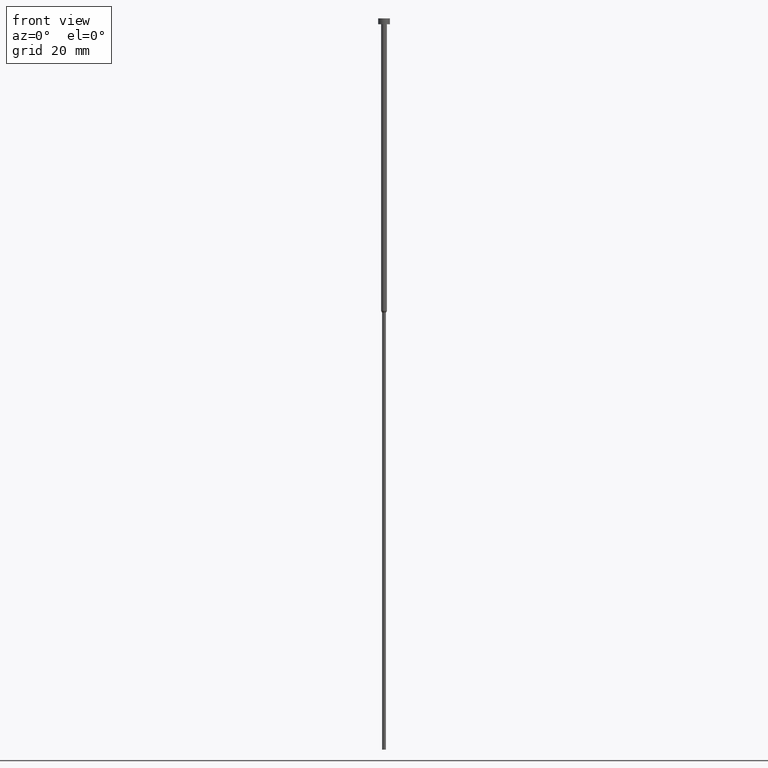
[diagram: clean part render]
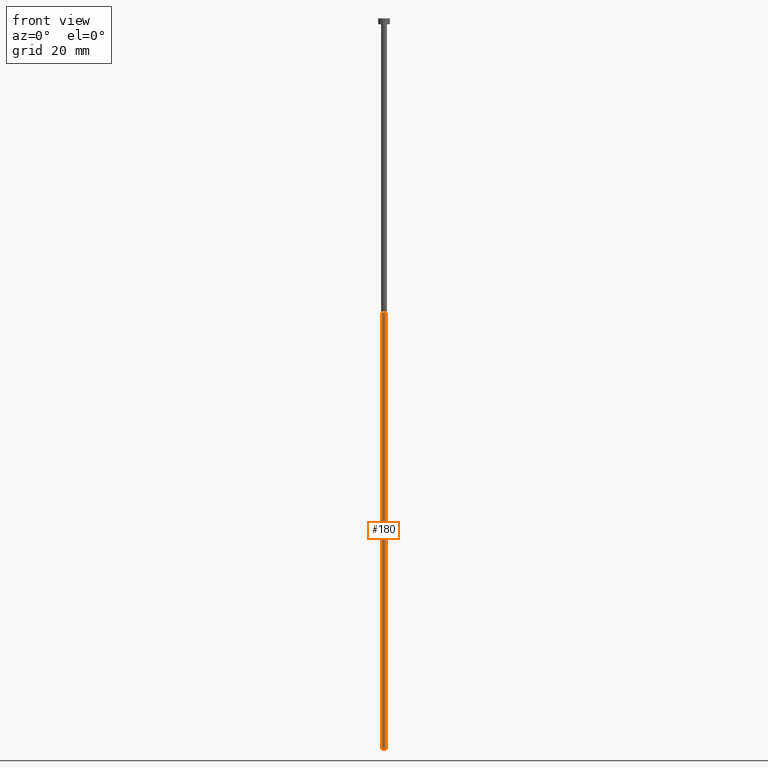
[diagram: same view with one face highlighted and labeled with its STEP entity id]
A machine part, front view. The second image highlights one B-rep face of the part: STEP entity #180.
In plain terms, the highlighted cylindrical surface (edge-blend (fillet) strip) has radius 0.65 mm, axis along (-0, -0, 1).
Its self-contained STEP definition (entity closure, byte-faithful):
#1 = VECTOR ( 'NONE', #51, 1000.000000000000000 ) ;
#17 = CARTESIAN_POINT ( 'NONE',  ( -0.6500000000000000222, 7.960204194457795477E-17, 0.000000000000000000 ) ) ;
#20 = FACE_OUTER_BOUND ( 'NONE', #190, .T. ) ;
#24 = VECTOR ( 'NONE', #198, 1000.000000000000000 ) ;
#25 = CARTESIAN_POINT ( 'NONE',  ( 0.000000000000000000, 0.000000000000000000, -100.6062177826491109 ) ) ;
#30 = EDGE_CURVE ( 'NONE', #36, #155, #78, .T. ) ;
#36 = VERTEX_POINT ( 'NONE', #79 ) ;
#51 = DIRECTION ( 'NONE',  ( -0.000000000000000000, -0.000000000000000000, 1.000000000000000000 ) ) ;
#62 = AXIS2_PLACEMENT_3D ( 'NONE', #25, #146, #250 ) ;
#75 = ORIENTED_EDGE ( 'NONE', *, *, #254, .T. ) ;
#78 = LINE ( 'NONE', #17, #1 ) ;
#79 = CARTESIAN_POINT ( 'NONE',  ( -0.6500000000000000222, 7.960204194457795477E-17, -250.0000000000000000 ) ) ;
#84 = VERTEX_POINT ( 'NONE', #144 ) ;
#88 = LINE ( 'NONE', #304, #24 ) ;
#107 = DIRECTION ( 'NONE',  ( -0.000000000000000000, -0.000000000000000000, 1.000000000000000000 ) ) ;
#110 = DIRECTION ( 'NONE',  ( 1.000000000000000000, 0.000000000000000000, 0.000000000000000000 ) ) ;
#118 = EDGE_CURVE ( 'NONE', #155, #310, #342, .T. ) ;
#144 = CARTESIAN_POINT ( 'NONE',  ( 0.6500000000000000222, 0.000000000000000000, -250.0000000000000000 ) ) ;
#146 = DIRECTION ( 'NONE',  ( -0.000000000000000000, -0.000000000000000000, 1.000000000000000000 ) ) ;
#148 = EDGE_CURVE ( 'NONE', #36, #84, #150, .T. ) ;
#149 = DIRECTION ( 'NONE',  ( -0.000000000000000000, -0.000000000000000000, 1.000000000000000000 ) ) ;
#150 = CIRCLE ( 'NONE', #264, 0.6500000000000000222 ) ;
#155 = VERTEX_POINT ( 'NONE', #222 ) ;
#163 = CARTESIAN_POINT ( 'NONE',  ( 0.6500000000000000222, 0.000000000000000000, -100.6062177826491109 ) ) ;
#178 = ORIENTED_EDGE ( 'NONE', *, *, #118, .F. ) ;
#180 = ADVANCED_FACE ( 'NONE', ( #20 ), #354, .T. ) ;
#190 = EDGE_LOOP ( 'NONE', ( #191, #263, #75, #178 ) ) ;
#191 = ORIENTED_EDGE ( 'NONE', *, *, #30, .F. ) ;
#198 = DIRECTION ( 'NONE',  ( -0.000000000000000000, -0.000000000000000000, 1.000000000000000000 ) ) ;
#222 = CARTESIAN_POINT ( 'NONE',  ( -0.6500000000000000222, 7.960204194457795477E-17, -100.6062177826491109 ) ) ;
#230 = AXIS2_PLACEMENT_3D ( 'NONE', #348, #149, #110 ) ;
#250 = DIRECTION ( 'NONE',  ( 1.000000000000000000, 0.000000000000000000, 0.000000000000000000 ) ) ;
#254 = EDGE_CURVE ( 'NONE', #84, #310, #88, .T. ) ;
#263 = ORIENTED_EDGE ( 'NONE', *, *, #148, .T. ) ;
#264 = AXIS2_PLACEMENT_3D ( 'NONE', #345, #107, #273 ) ;
#273 = DIRECTION ( 'NONE',  ( 1.000000000000000000, 0.000000000000000000, 0.000000000000000000 ) ) ;
#304 = CARTESIAN_POINT ( 'NONE',  ( 0.6500000000000000222, 0.000000000000000000, 0.000000000000000000 ) ) ;
#310 = VERTEX_POINT ( 'NONE', #163 ) ;
#342 = CIRCLE ( 'NONE', #62, 0.6500000000000000222 ) ;
#345 = CARTESIAN_POINT ( 'NONE',  ( 0.000000000000000000, 0.000000000000000000, -250.0000000000000000 ) ) ;
#348 = CARTESIAN_POINT ( 'NONE',  ( 0.000000000000000000, 0.000000000000000000, 0.000000000000000000 ) ) ;
#354 = CYLINDRICAL_SURFACE ( 'NONE', #230, 0.6500000000000000222 ) ;